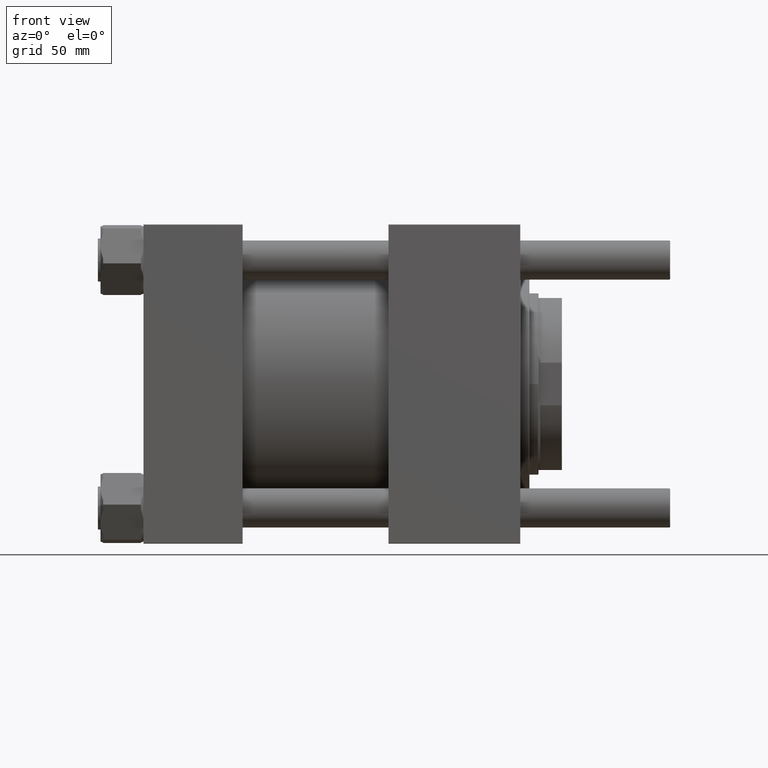
[diagram: clean part render]
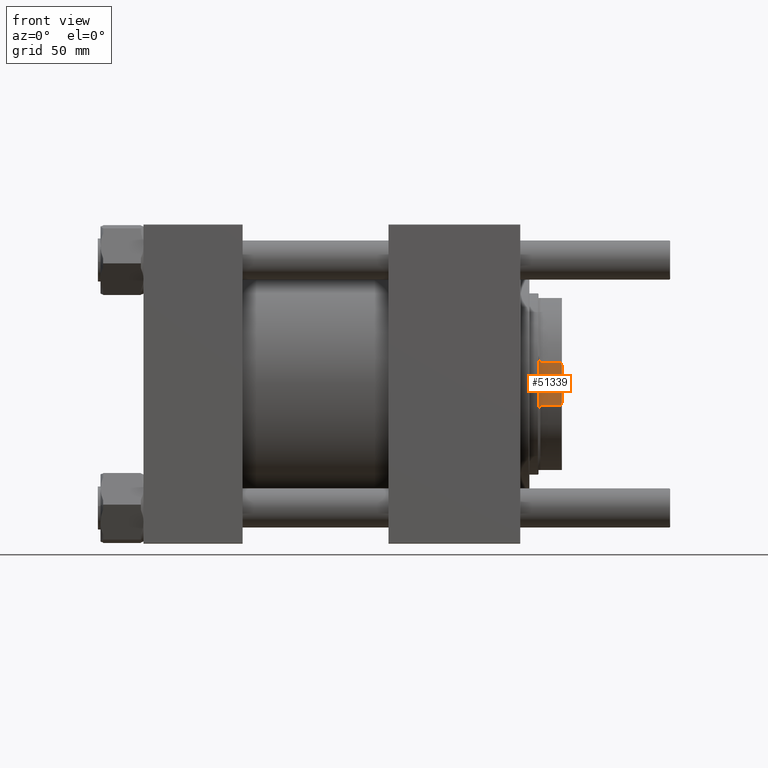
[diagram: same view with one face highlighted and labeled with its STEP entity id]
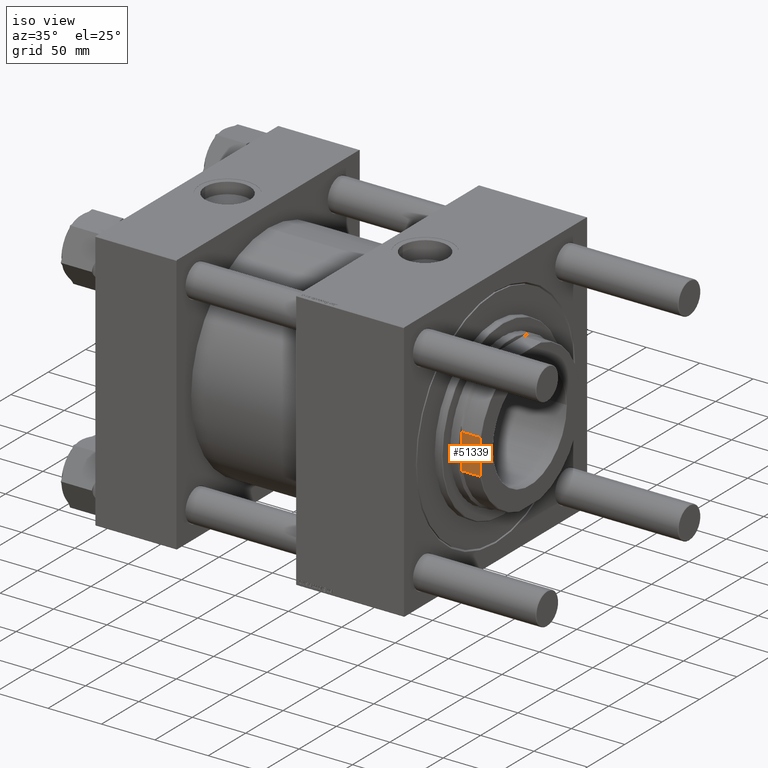
[diagram: same view with one face highlighted and labeled with its STEP entity id]
A machine part, front view. The second image highlights one B-rep face of the part: STEP entity #51339.
A second angle (iso view) of the same face is appended — the face is thin or edge-on in the first view.
In plain terms, the highlighted planar face has unit normal (0, 1, 0).
Its self-contained STEP definition (entity closure, byte-faithful):
#431 = VECTOR ( 'NONE', #47785, 1000.000000000000000 ) ;
#465 = B_SPLINE_CURVE_WITH_KNOTS ( 'NONE', 3,
 ( #6436, #20040, #28719, #41728 ),
 .UNSPECIFIED., .F., .F.,
 ( 4, 4 ),
 ( 0.1766996262254564576, 0.1823180030003245244 ),
 .UNSPECIFIED. ) ;
#2231 = CARTESIAN_POINT ( 'NONE',  ( 66.00000000000000000, -16.37070554374490072, 244.5000000000000000 ) ) ;
#3608 = EDGE_CURVE ( 'NONE', #39835, #5470, #465, .T. ) ;
#4173 = EDGE_CURVE ( 'NONE', #29480, #17148, #34321, .T. ) ;
#5010 = PLANE ( 'NONE',  #40481 ) ;
#5470 = VERTEX_POINT ( 'NONE', #16514 ) ;
#6436 = CARTESIAN_POINT ( 'NONE',  ( 66.00000000000000000, -16.37070554374490072, 228.5000000000002558 ) ) ;
#6445 = EDGE_CURVE ( 'NONE', #53748, #41135, #16157, .T. ) ;
#7291 = CARTESIAN_POINT ( 'NONE',  ( 66.00000000000000000, 16.37070554374490783, 244.5000000000000284 ) ) ;
#7327 = LINE ( 'NONE', #7888, #11595 ) ;
#7888 = CARTESIAN_POINT ( 'NONE',  ( 66.00000000000000000, 65.99999999999998579, 227.0000000000000000 ) ) ;
#8409 = CARTESIAN_POINT ( 'NONE',  ( 66.00000000000000000, 65.99999999999998579, 245.0000000000000000 ) ) ;
#9634 = FACE_OUTER_BOUND ( 'NONE', #11957, .T. ) ;
#11190 = CARTESIAN_POINT ( 'NONE',  ( 66.00000000000000000, -16.37070554374490072, -0.001000000000001000089 ) ) ;
#11548 = CARTESIAN_POINT ( 'NONE',  ( 66.00000000000000000, 16.37070554374490783, 228.5000000000002558 ) ) ;
#11595 = VECTOR ( 'NONE', #16293, 1000.000000000000000 ) ;
#11957 = EDGE_LOOP ( 'NONE', ( #39578, #15503, #26403, #18934, #33795, #18899, #13069, #36271 ) ) ;
#12852 = CARTESIAN_POINT ( 'NONE',  ( 66.00000000000001421, -14.89336704315969406, 244.8443612516008159 ) ) ;
#13069 = ORIENTED_EDGE ( 'NONE', *, *, #23878, .T. ) ;
#13588 = CARTESIAN_POINT ( 'NONE',  ( 66.00000000000001421, 14.15097169808519162, 245.0000000000000000 ) ) ;
#15503 = ORIENTED_EDGE ( 'NONE', *, *, #30689, .T. ) ;
#16157 = B_SPLINE_CURVE_WITH_KNOTS ( 'NONE', 3,
 ( #28356, #55799, #54941, #11548 ),
 .UNSPECIFIED., .F., .F.,
 ( 4, 4 ),
 ( 0.2507019454379199597, 0.2563399018234826521 ),
 .UNSPECIFIED. ) ;
#16293 = DIRECTION ( 'NONE',  ( -2.102695122396129669E-16, 1.000000000000000000, -0.000000000000000000 ) ) ;
#16514 = CARTESIAN_POINT ( 'NONE',  ( 66.00000000000000000, -21.77728174038269771, 227.0000000000000284 ) ) ;
#16919 = CARTESIAN_POINT ( 'NONE',  ( 66.00000000000000000, -16.37070554374490072, 244.5000000000000000 ) ) ;
#17148 = VERTEX_POINT ( 'NONE', #2231 ) ;
#18270 = VECTOR ( 'NONE', #51682, 1000.000000000000000 ) ;
#18899 = ORIENTED_EDGE ( 'NONE', *, *, #3608, .T. ) ;
#18934 = ORIENTED_EDGE ( 'NONE', *, *, #4173, .T. ) ;
#20040 = CARTESIAN_POINT ( 'NONE',  ( 66.00000000000000000, -18.19504534860026723, 228.0607980918087492 ) ) ;
#21028 = EDGE_CURVE ( 'NONE', #41135, #41556, #31006, .T. ) ;
#21201 = CARTESIAN_POINT ( 'NONE',  ( 66.00000000000000000, 16.37070554374490783, -0.001000000000001000089 ) ) ;
#21617 = CARTESIAN_POINT ( 'NONE',  ( 66.00000000000000000, -16.37070554374490072, 228.5000000000002558 ) ) ;
#23878 = EDGE_CURVE ( 'NONE', #5470, #53748, #7327, .T. ) ;
#24244 = CARTESIAN_POINT ( 'NONE',  ( 66.00000000000001421, 14.15097169808519162, 245.0000000000000000 ) ) ;
#24527 = CARTESIAN_POINT ( 'NONE',  ( 66.00000000000000000, 15.63324367379116708, 244.6775407518052248 ) ) ;
#25803 = VERTEX_POINT ( 'NONE', #13588 ) ;
#26403 = ORIENTED_EDGE ( 'NONE', *, *, #40703, .F. ) ;
#28356 = CARTESIAN_POINT ( 'NONE',  ( 66.00000000000000000, 21.77728174038272613, 227.0000000000000000 ) ) ;
#28398 = B_SPLINE_CURVE_WITH_KNOTS ( 'NONE', 3,
 ( #46507, #24527, #46231, #24244 ),
 .UNSPECIFIED., .F., .F.,
 ( 4, 4 ),
 ( 0.000000000000000000, 0.002275350158891428862 ),
 .UNSPECIFIED. ) ;
#28471 = CARTESIAN_POINT ( 'NONE',  ( 66.00000000000000000, 21.77728174038272613, 227.0000000000000000 ) ) ;
#28719 = CARTESIAN_POINT ( 'NONE',  ( 66.00000000000000000, -19.99624504576308226, 227.5580739264561032 ) ) ;
#29480 = VERTEX_POINT ( 'NONE', #53527 ) ;
#30689 = EDGE_CURVE ( 'NONE', #41556, #25803, #28398, .T. ) ;
#30974 = DIRECTION ( 'NONE',  ( -2.102695122396129669E-16, 1.000000000000000000, -0.000000000000000000 ) ) ;
#31006 = LINE ( 'NONE', #21201, #431 ) ;
#32496 = CARTESIAN_POINT ( 'NONE',  ( 66.00000000000000000, 65.99999999999998579, 245.0000000000000000 ) ) ;
#33795 = ORIENTED_EDGE ( 'NONE', *, *, #50836, .F. ) ;
#34321 = B_SPLINE_CURVE_WITH_KNOTS ( 'NONE', 3,
 ( #43820, #12852, #48150, #16919 ),
 .UNSPECIFIED., .F., .F.,
 ( 4, 4 ),
 ( 5.204170427930421283E-18, 0.002275350158891900273 ),
 .UNSPECIFIED. ) ;
#36271 = ORIENTED_EDGE ( 'NONE', *, *, #6445, .T. ) ;
#37123 = DIRECTION ( 'NONE',  ( 2.102695122396129669E-16, -1.000000000000000000, 0.000000000000000000 ) ) ;
#39508 = CARTESIAN_POINT ( 'NONE',  ( 66.00000000000000000, 16.37070554374490783, 228.5000000000002558 ) ) ;
#39578 = ORIENTED_EDGE ( 'NONE', *, *, #21028, .T. ) ;
#39649 = LINE ( 'NONE', #8409, #56315 ) ;
#39835 = VERTEX_POINT ( 'NONE', #21617 ) ;
#40481 = AXIS2_PLACEMENT_3D ( 'NONE', #32496, #45785, #37123 ) ;
#40703 = EDGE_CURVE ( 'NONE', #29480, #25803, #39649, .T. ) ;
#41135 = VERTEX_POINT ( 'NONE', #39508 ) ;
#41556 = VERTEX_POINT ( 'NONE', #7291 ) ;
#41728 = CARTESIAN_POINT ( 'NONE',  ( 66.00000000000000000, -21.77728174038269771, 227.0000000000000284 ) ) ;
#43820 = CARTESIAN_POINT ( 'NONE',  ( 66.00000000000001421, -14.15097169808469957, 245.0000000000000000 ) ) ;
#45785 = DIRECTION ( 'NONE',  ( -1.000000000000000000, -2.102695122396129669E-16, 0.000000000000000000 ) ) ;
#46231 = CARTESIAN_POINT ( 'NONE',  ( 66.00000000000001421, 14.89336704316002091, 244.8443612516008159 ) ) ;
#46507 = CARTESIAN_POINT ( 'NONE',  ( 66.00000000000000000, 16.37070554374490783, 244.5000000000000284 ) ) ;
#47785 = DIRECTION ( 'NONE',  ( -0.000000000000000000, -0.000000000000000000, 1.000000000000000000 ) ) ;
#48150 = CARTESIAN_POINT ( 'NONE',  ( 66.00000000000001421, -15.63324367379100366, 244.6775407518051964 ) ) ;
#50836 = EDGE_CURVE ( 'NONE', #39835, #17148, #51389, .T. ) ;
#51339 = ADVANCED_FACE ( 'NONE', ( #9634 ), #5010, .F. ) ;
#51389 = LINE ( 'NONE', #11190, #18270 ) ;
#51682 = DIRECTION ( 'NONE',  ( -0.000000000000000000, -0.000000000000000000, 1.000000000000000000 ) ) ;
#53527 = CARTESIAN_POINT ( 'NONE',  ( 66.00000000000001421, -14.15097169808469957, 245.0000000000000000 ) ) ;
#53748 = VERTEX_POINT ( 'NONE', #28471 ) ;
#54941 = CARTESIAN_POINT ( 'NONE',  ( 66.00000000000000000, 18.18949067861452207, 228.0621353545547834 ) ) ;
#55799 = CARTESIAN_POINT ( 'NONE',  ( 66.00000000000000000, 19.99103418156066425, 227.5597067100222262 ) ) ;
#56315 = VECTOR ( 'NONE', #30974, 1000.000000000000000 ) ;